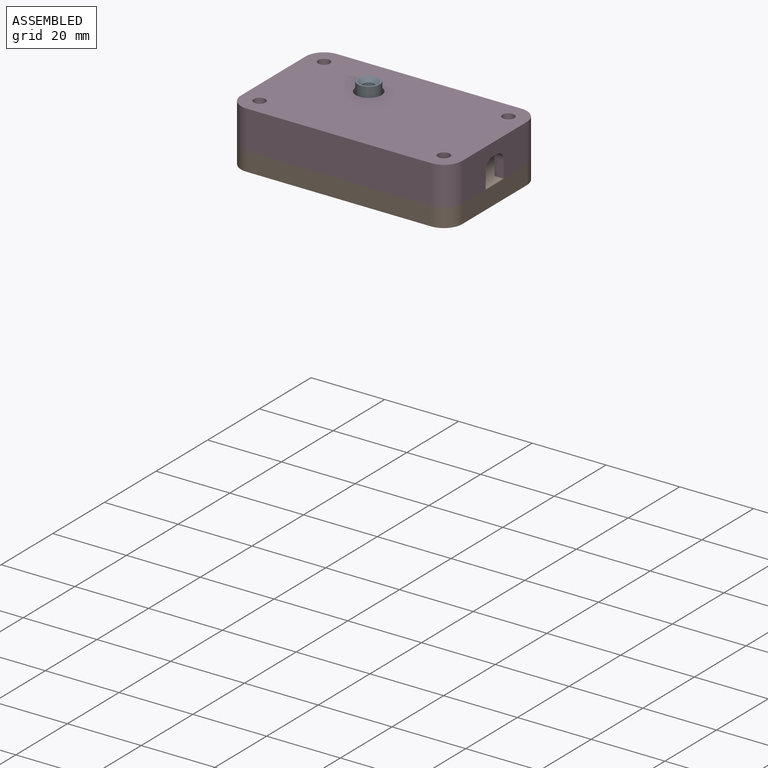
[diagram: assembled view]
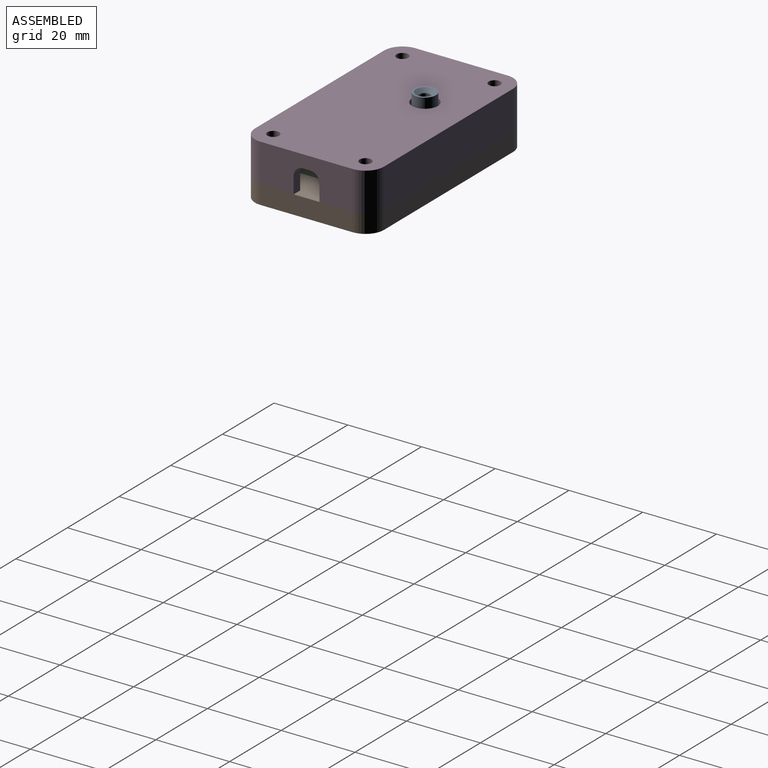
[diagram: assembled view, second angle]
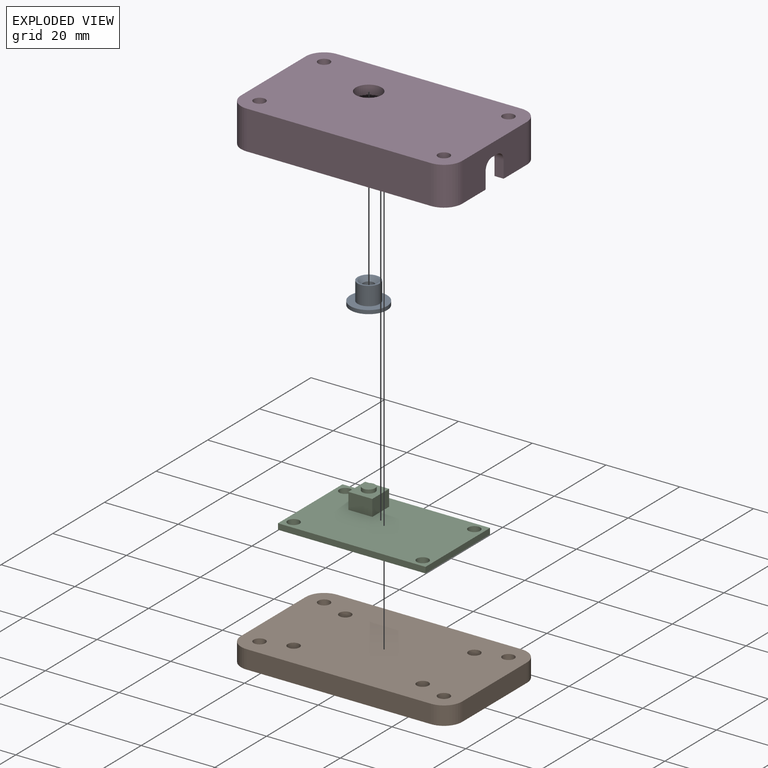
[diagram: exploded view]
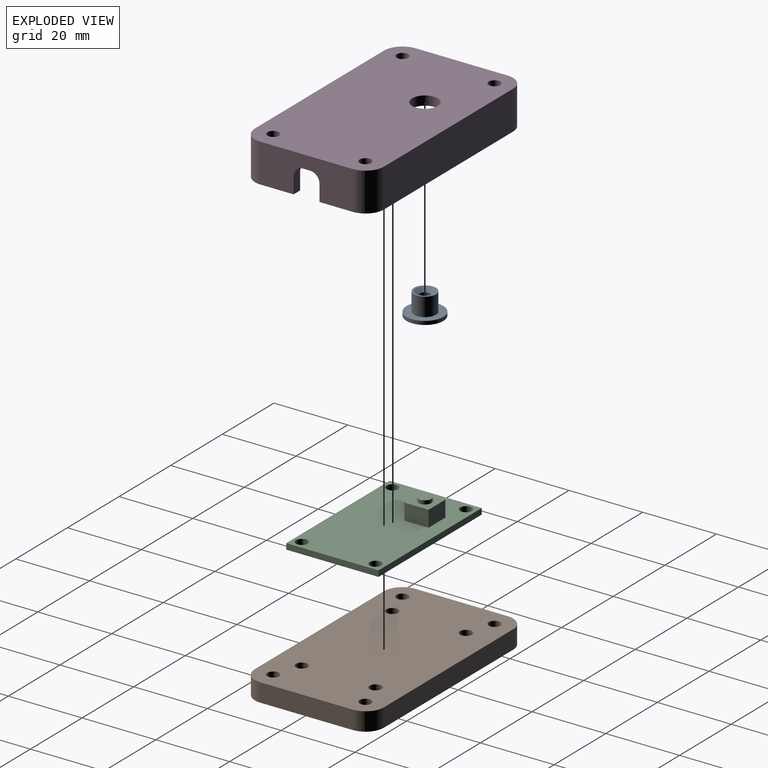
[diagram: exploded view, second angle]
ASSEMBLY  parts=4 mates=3
PART A: 8 faces, bbox 10x10x6 mm
  f0: cylinder r=5mm len=10mm, axis (0,0,-1), area 31.4mm2, adj f1,f2
  f1: plane 10x10mm, normal (0,0,1), area 50.3mm2, adj f0,f3
  f2: plane 10x10mm, normal (0,0,-1), area 78.5mm2, adj f0
  f3: cylinder r=3mm len=6mm, axis (0,0,-1), area 94.2mm2, adj f1,f4
  f4: plane 6x6mm, normal (0,0,1), area 8.6mm2, adj f3,f7
  f5: cylinder r=1.5mm len=3mm, axis (0,0,1), area 9.4mm2, adj f6,f7
  f6: plane 3x3mm, normal (0,0,1), area 7.1mm2, adj f5
  f7: cone r=1.5mm half-angle=45deg, axis (0,0,1), area 17.8mm2, adj f4,f5
PART B: 46 faces, bbox 60x35x5 mm
  f0: cylinder r=1.6mm len=3.2mm, axis (0,0,1), area 20.1mm2, adj f8,f37
  f1: cylinder r=1.6mm len=3.2mm, axis (0,0,1), area 20.1mm2, adj f8,f30
  f2: cylinder r=1.6mm len=3.2mm, axis (0,0,1), area 20.1mm2, adj f8,f23
  f3: cylinder r=1.6mm len=3.2mm, axis (0,0,1), area 20.1mm2, adj f8,f16
  f4: plane 50x5mm, normal (0,-1,0), area 250mm2, adj f8,f9,f38,f41
  f5: plane 25x5mm, normal (1,0,0), area 125mm2, adj f8,f9,f38,f39
  f6: plane 50x5mm, normal (0,1,0), area 250mm2, adj f8,f9,f39,f40
  f7: plane 25x5mm, normal (-1,0,0), area 125mm2, adj f8,f9,f40,f41
  f8: plane 60x35mm, normal (0,0,1), area 2014.2mm2, adj f0,f1,f2,f3,f4,f5,f6,f7
  f9: plane 60x35mm, normal (0,0,-1), area 1921.7mm2, adj f4,f5,f6,f7,f10,f11,f12,f13
  f10: plane 3x3mm, normal (0.87,0.5,0), area 10.4mm2, adj f9,f11,f15,f16
  f11: plane 3x3mm, normal (0.87,-0.5,0), area 10.4mm2, adj f9,f10,f12,f16
  f12: plane 3.46x3mm, normal (0,-1,0), area 10.4mm2, adj f9,f11,f13,f16
  f13: plane 3x3mm, normal (-0.87,-0.5,0), area 10.4mm2, adj f9,f12,f14,f16
  f14: plane 3x3mm, normal (-0.87,0.5,0), area 10.4mm2, adj f9,f13,f15,f16
  f15: plane 3.46x3mm, normal (0,1,0), area 10.4mm2, adj f9,f10,f14,f16
  f16: plane 6.93x6mm, normal (0,0,-1), area 23.1mm2, adj f3,f10,f11,f12,f13,f14,f15
  f17: plane 3x3mm, normal (0.87,0.5,0), area 10.4mm2, adj f9,f18,f22,f23
  f18: plane 3x3mm, normal (0.87,-0.5,0), area 10.4mm2, adj f9,f17,f19,f23
  f19: plane 3.46x3mm, normal (0,-1,0), area 10.4mm2, adj f9,f18,f20,f23
  f20: plane 3x3mm, normal (-0.87,-0.5,0), area 10.4mm2, adj f9,f19,f21,f23
  f21: plane 3x3mm, normal (-0.87,0.5,0), area 10.4mm2, adj f9,f20,f22,f23
  f22: plane 3.46x3mm, normal (0,1,0), area 10.4mm2, adj f9,f17,f21,f23
  f23: plane 6.93x6mm, normal (0,0,-1), area 23.1mm2, adj f2,f17,f18,f19,f20,f21,f22
  f24: plane 3x3mm, normal (0.87,0.5,0), area 10.4mm2, adj f9,f25,f29,f30
  f25: plane 3x3mm, normal (0.87,-0.5,0), area 10.4mm2, adj f9,f24,f26,f30
  f26: plane 3.46x3mm, normal (0,-1,0), area 10.4mm2, adj f9,f25,f27,f30
  f27: plane 3x3mm, normal (-0.87,-0.5,0), area 10.4mm2, adj f9,f26,f28,f30
  f28: plane 3x3mm, normal (-0.87,0.5,0), area 10.4mm2, adj f9,f27,f29,f30
  f29: plane 3.46x3mm, normal (0,1,0), area 10.4mm2, adj f9,f24,f28,f30
  f30: plane 6.93x6mm, normal (0,0,-1), area 23.1mm2, adj f1,f24,f25,f26,f27,f28,f29
  f31: plane 3x3mm, normal (0.87,0.5,0), area 10.4mm2, adj f9,f32,f36,f37
  f32: plane 3x3mm, normal (0.87,-0.5,0), area 10.4mm2, adj f9,f31,f33,f37
  f33: plane 3.46x3mm, normal (0,-1,0), area 10.4mm2, adj f9,f32,f34,f37
  f34: plane 3x3mm, normal (-0.87,-0.5,0), area 10.4mm2, adj f9,f33,f35,f37
  f35: plane 3x3mm, normal (-0.87,0.5,0), area 10.4mm2, adj f9,f34,f36,f37
  f36: plane 3.46x3mm, normal (0,1,0), area 10.4mm2, adj f9,f31,f35,f37
  f37: plane 6.93x6mm, normal (0,0,-1), area 23.1mm2, adj f0,f31,f32,f33,f34,f35,f36
  f38: cylinder r=5mm len=5mm, axis (0,0,1), area 39.3mm2, adj f4,f5,f8,f9
  f39: cylinder r=5mm len=5mm, axis (0,0,-1), area 39.3mm2, adj f5,f6,f8,f9
  f40: cylinder r=5mm len=5mm, axis (0,0,1), area 39.3mm2, adj f6,f7,f8,f9
  f41: cylinder r=5mm len=5mm, axis (0,0,-1), area 39.3mm2, adj f4,f7,f8,f9
  f42: cylinder r=1.6mm len=5mm, axis (0,0,1), area 50.3mm2, adj f8,f9
  f43: cylinder r=1.6mm len=5mm, axis (0,0,1), area 50.3mm2, adj f8,f9
  f44: cylinder r=1.6mm len=5mm, axis (0,0,1), area 50.3mm2, adj f8,f9
  f45: cylinder r=1.6mm len=5mm, axis (0,0,1), area 50.3mm2, adj f8,f9
PART C: 17 faces, bbox 40x25x7 mm
  f0: plane 40x25mm, normal (0,0,1), area 925.6mm2, adj f1,f2,f3,f4,f6,f7,f8,f9
  f1: plane 25x1.6mm, normal (1,0,0), area 40mm2, adj f0,f2,f4,f5
  f2: plane 40x1.6mm, normal (0,1,0), area 64mm2, adj f0,f1,f3,f5
  f3: plane 25x1.6mm, normal (-1,0,0), area 40mm2, adj f0,f2,f4,f5
  f4: plane 40x1.6mm, normal (0,-1,0), area 64mm2, adj f0,f1,f3,f5
  f5: plane 40x25mm, normal (0,0,-1), area 967.8mm2, adj f1,f2,f3,f4,f6,f7,f8,f9
  f6: cylinder r=1.6mm len=3.2mm, axis (0,0,1), area 16.1mm2, adj f0,f5
  f7: cylinder r=1.6mm len=3.2mm, axis (0,0,1), area 16.1mm2, adj f0,f5
  f8: cylinder r=1.6mm len=3.2mm, axis (0,0,1), area 16.1mm2, adj f0,f5
  f9: cylinder r=1.6mm len=3.2mm, axis (0,0,1), area 16.1mm2, adj f0,f5
  f10: plane 6.5x4.4mm, normal (1,0,0), area 28.6mm2, adj f0,f11,f13,f14
  f11: plane 6.5x4.4mm, normal (0,1,0), area 28.6mm2, adj f0,f10,f12,f14
  f12: plane 6.5x4.4mm, normal (-1,0,0), area 28.6mm2, adj f0,f11,f13,f14
  f13: plane 6.5x4.4mm, normal (0,-1,0), area 28.6mm2, adj f0,f10,f12,f14
  f14: plane 6.5x6.5mm, normal (0,0,1), area 32.6mm2, adj f10,f11,f12,f13,f15
  f15: cylinder r=1.75mm len=3.5mm, axis (0,0,-1), area 11mm2, adj f14,f16
  f16: plane 3.5x3.5mm, normal (0,0,1), area 9.6mm2, adj f15
PART D: 35 faces, bbox 60x35x10.5 mm
  f0: plane 60x14mm, normal (0,0,-1), area 199.5mm2, adj f1,f2,f3,f6,f7,f11,f12,f14
  f1: plane 25x10.5mm, normal (1,0,0), area 216.2mm2, adj f0,f4,f8,f9,f12,f28,f29,f30
  f2: plane 25x8mm, normal (-1,0,0), area 153.7mm2, adj f0,f4,f15,f16,f19,f28,f29,f30
  f3: plane 25x8mm, normal (1,0,0), area 153.7mm2, adj f0,f4,f15,f17,f18,f25,f26,f27
  f4: plane 60x14mm, normal (0,0,-1), area 199.5mm2, adj f1,f2,f3,f5,f6,f9,f10,f13
  f5: plane 50x10.5mm, normal (0,1,0), area 525mm2, adj f4,f8,f9,f10
  f6: plane 25x10.5mm, normal (-1,0,0), area 216.2mm2, adj f0,f4,f8,f10,f11,f25,f26,f27
  f7: plane 50x10.5mm, normal (0,-1,0), area 525mm2, adj f0,f8,f11,f12
  f8: plane 60x35mm, normal (0,0,1), area 2007.9mm2, adj f1,f5,f6,f7,f9,f10,f11,f12
  f9: cylinder r=5mm len=10.5mm, axis (0,0,1), area 82.5mm2, adj f1,f4,f5,f8
  f10: cylinder r=5mm len=10.5mm, axis (0,0,-1), area 82.5mm2, adj f4,f5,f6,f8
  f11: cylinder r=5mm len=10.5mm, axis (0,0,1), area 82.5mm2, adj f0,f6,f7,f8
  f12: cylinder r=5mm len=10.5mm, axis (0,0,-1), area 82.5mm2, adj f0,f1,f7,f8
  f13: plane 50x8mm, normal (0,-1,0), area 400mm2, adj f4,f15,f16,f17
  f14: plane 50x8mm, normal (0,1,0), area 400mm2, adj f0,f15,f18,f19
  f15: plane 55x30mm, normal (0,0,-1), area 1574mm2, adj f2,f3,f13,f14,f16,f17,f18,f19
  f16: cylinder r=2.5mm len=8mm, axis (0,0,1), area 31.4mm2, adj f2,f4,f13,f15
  f17: cylinder r=2.5mm len=8mm, axis (0,0,-1), area 31.4mm2, adj f3,f4,f13,f15
  f18: cylinder r=2.5mm len=8mm, axis (0,0,1), area 31.4mm2, adj f0,f3,f14,f15
  f19: cylinder r=2.5mm len=8mm, axis (0,0,-1), area 31.4mm2, adj f0,f2,f14,f15
  f20: cylinder r=3.5mm len=7mm, axis (0,0,1), area 55mm2, adj f8,f15
  f21: cylinder r=1.6mm len=3.2mm, axis (0,0,-1), area 25.1mm2, adj f8,f15
  f22: cylinder r=1.6mm len=3.2mm, axis (0,0,-1), area 25.1mm2, adj f8,f15
  f23: cylinder r=1.6mm len=3.2mm, axis (0,0,-1), area 25.1mm2, adj f8,f15
  f24: cylinder r=1.6mm len=3.2mm, axis (0,0,-1), area 25.1mm2, adj f8,f15
  f25: plane 2.5x2mm, normal (0,0,-1), area 5mm2, adj f3,f6,f31,f32
  f26: plane 4.5x2.5mm, normal (0,1,0), area 11.3mm2, adj f0,f3,f6,f32
  f27: plane 4.5x2.5mm, normal (0,-1,0), area 11.3mm2, adj f3,f4,f6,f31
  f28: plane 4.5x2.5mm, normal (0,-1,0), area 11.2mm2, adj f1,f2,f4,f34
  f29: plane 4.5x2.5mm, normal (0,1,0), area 11.2mm2, adj f0,f1,f2,f33
  f30: plane 2.5x2mm, normal (0,0,-1), area 5mm2, adj f1,f2,f33,f34
  f31: cylinder r=2.5mm len=2.5mm, axis (1,0,0), area 9.8mm2, adj f3,f6,f25,f27
  f32: cylinder r=2.5mm len=2.5mm, axis (-1,0,0), area 9.8mm2, adj f3,f6,f25,f26
  f33: cylinder r=2.5mm len=2.5mm, axis (-1,0,0), area 9.8mm2, adj f1,f2,f29,f30
  f34: cylinder r=2.5mm len=2.5mm, axis (1,0,0), area 9.8mm2, adj f1,f2,f28,f30
PLACE A t=(-5.37,7.22,9.8)mm
PLACE B t=(2.63,1.72,-2.2)mm
PLACE C t=(2.63,1.72,2.8)mm
PLACE D t=(2.63,1.72,2.8)mm
MATE fastened A.f0 <-> C.f15  axis (0,0,-1) through (-5.37,7.22,9.8)mm
MATE fastened D.f20 <-> A.f3  axis (0,0,-1) through (-5.37,7.22,10.8)mm
MATE fastened C.f9 <-> B.f3  axis (0,0,-1) through (-14.87,-8.28,2.8)mm
